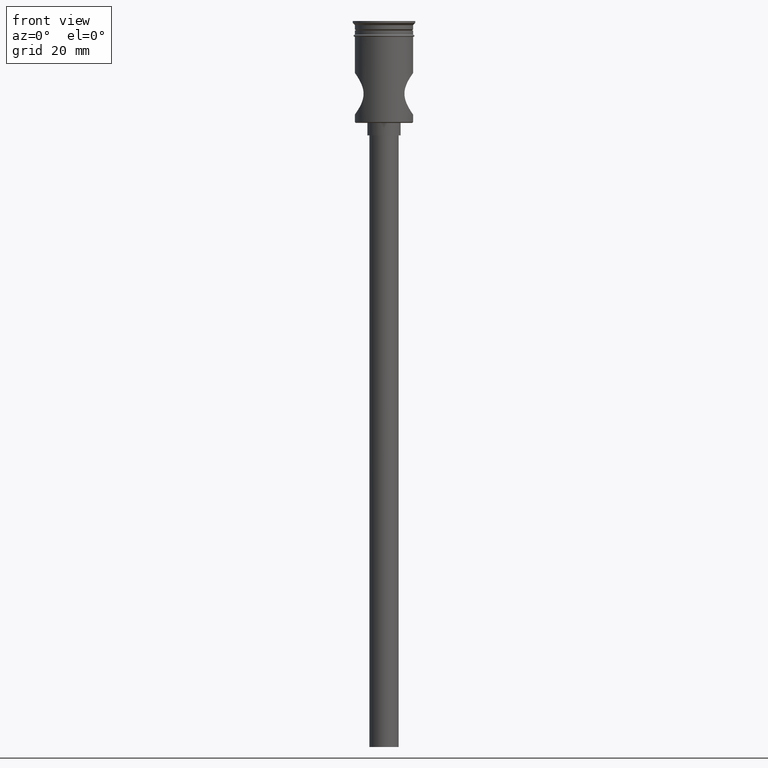
[diagram: clean part render]
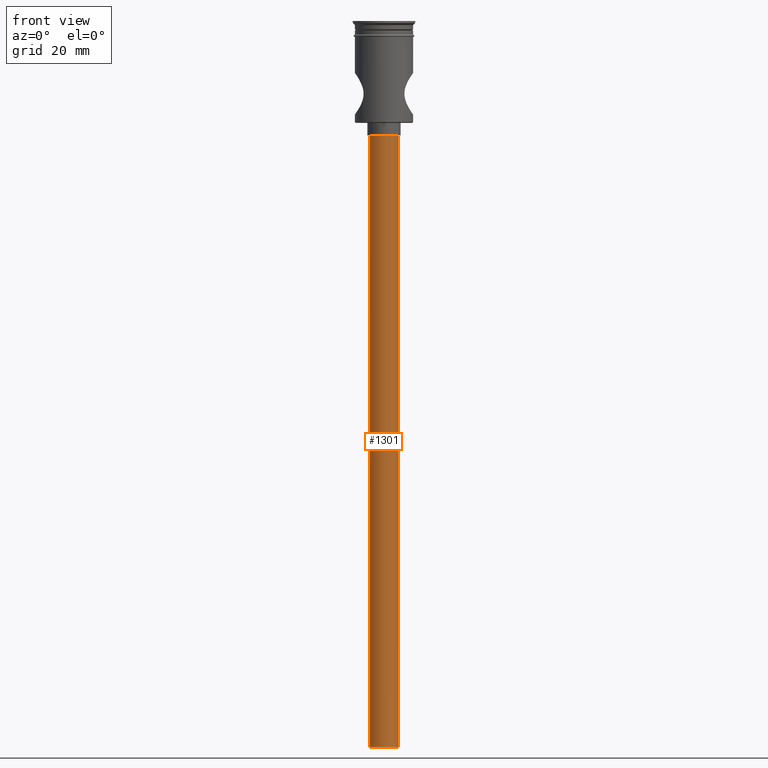
[diagram: same view with one face highlighted and labeled with its STEP entity id]
A machine part, front view. The second image highlights one B-rep face of the part: STEP entity #1301.
In plain terms, the highlighted cylindrical surface (edge-blend (fillet) strip) has radius 3.5 mm, axis along (-0, -0, 1).
Its self-contained STEP definition (entity closure, byte-faithful):
#23 = CYLINDRICAL_SURFACE ( 'NONE', #278, 3.500000000000000444 ) ;
#26 = CARTESIAN_POINT ( 'NONE',  ( -3.500000000000000444, 4.286263797015737088E-16, -174.5000000000000000 ) ) ;
#56 = ORIENTED_EDGE ( 'NONE', *, *, #203, .F. ) ;
#73 = CARTESIAN_POINT ( 'NONE',  ( 3.500000000000000444, 0.000000000000000000, -27.50000000000000000 ) ) ;
#126 = CARTESIAN_POINT ( 'NONE',  ( 0.000000000000000000, 0.000000000000000000, -174.5000000000000000 ) ) ;
#131 = CARTESIAN_POINT ( 'NONE',  ( 3.500000000000000444, 0.000000000000000000, -174.5000000000000000 ) ) ;
#168 = EDGE_LOOP ( 'NONE', ( #804, #56, #1125, #1404 ) ) ;
#182 = DIRECTION ( 'NONE',  ( 0.000000000000000000, 0.000000000000000000, -1.000000000000000000 ) ) ;
#203 = EDGE_CURVE ( 'NONE', #1114, #346, #771, .T. ) ;
#275 = CIRCLE ( 'NONE', #1077, 3.500000000000000444 ) ;
#278 = AXIS2_PLACEMENT_3D ( 'NONE', #382, #1082, #1412 ) ;
#312 = EDGE_CURVE ( 'NONE', #346, #1243, #560, .T. ) ;
#346 = VERTEX_POINT ( 'NONE', #26 ) ;
#353 = DIRECTION ( 'NONE',  ( -0.000000000000000000, -0.000000000000000000, 1.000000000000000000 ) ) ;
#382 = CARTESIAN_POINT ( 'NONE',  ( 0.000000000000000000, 0.000000000000000000, -174.5000000000000000 ) ) ;
#391 = DIRECTION ( 'NONE',  ( -1.000000000000000000, 0.000000000000000000, 0.000000000000000000 ) ) ;
#445 = AXIS2_PLACEMENT_3D ( 'NONE', #126, #1482, #446 ) ;
#446 = DIRECTION ( 'NONE',  ( -1.000000000000000000, 0.000000000000000000, 0.000000000000000000 ) ) ;
#465 = LINE ( 'NONE', #131, #798 ) ;
#490 = EDGE_CURVE ( 'NONE', #511, #1243, #275, .T. ) ;
#511 = VERTEX_POINT ( 'NONE', #73 ) ;
#560 = LINE ( 'NONE', #811, #912 ) ;
#629 = CARTESIAN_POINT ( 'NONE',  ( 0.000000000000000000, 0.000000000000000000, -27.50000000000000000 ) ) ;
#691 = DIRECTION ( 'NONE',  ( -0.000000000000000000, -0.000000000000000000, 1.000000000000000000 ) ) ;
#703 = EDGE_CURVE ( 'NONE', #1114, #511, #465, .T. ) ;
#771 = CIRCLE ( 'NONE', #445, 3.500000000000000444 ) ;
#798 = VECTOR ( 'NONE', #353, 1000.000000000000000 ) ;
#804 = ORIENTED_EDGE ( 'NONE', *, *, #312, .F. ) ;
#811 = CARTESIAN_POINT ( 'NONE',  ( -3.500000000000000444, 4.286263797015737088E-16, -174.5000000000000000 ) ) ;
#912 = VECTOR ( 'NONE', #691, 1000.000000000000000 ) ;
#1077 = AXIS2_PLACEMENT_3D ( 'NONE', #629, #182, #391 ) ;
#1082 = DIRECTION ( 'NONE',  ( -0.000000000000000000, -0.000000000000000000, 1.000000000000000000 ) ) ;
#1114 = VERTEX_POINT ( 'NONE', #1360 ) ;
#1125 = ORIENTED_EDGE ( 'NONE', *, *, #703, .T. ) ;
#1139 = CARTESIAN_POINT ( 'NONE',  ( -3.500000000000000444, 4.286263797015737088E-16, -27.50000000000000000 ) ) ;
#1243 = VERTEX_POINT ( 'NONE', #1139 ) ;
#1301 = ADVANCED_FACE ( 'NONE', ( #1431 ), #23, .T. ) ;
#1360 = CARTESIAN_POINT ( 'NONE',  ( 3.500000000000000444, 0.000000000000000000, -174.5000000000000000 ) ) ;
#1404 = ORIENTED_EDGE ( 'NONE', *, *, #490, .T. ) ;
#1412 = DIRECTION ( 'NONE',  ( 1.000000000000000000, 0.000000000000000000, 0.000000000000000000 ) ) ;
#1431 = FACE_OUTER_BOUND ( 'NONE', #168, .T. ) ;
#1482 = DIRECTION ( 'NONE',  ( 0.000000000000000000, 0.000000000000000000, -1.000000000000000000 ) ) ;